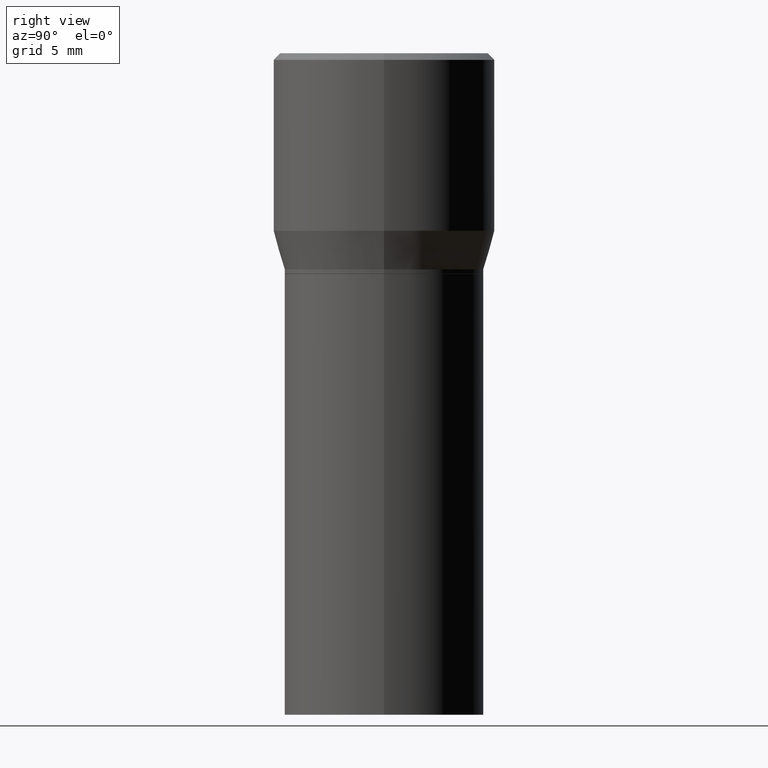
[diagram: clean part render]
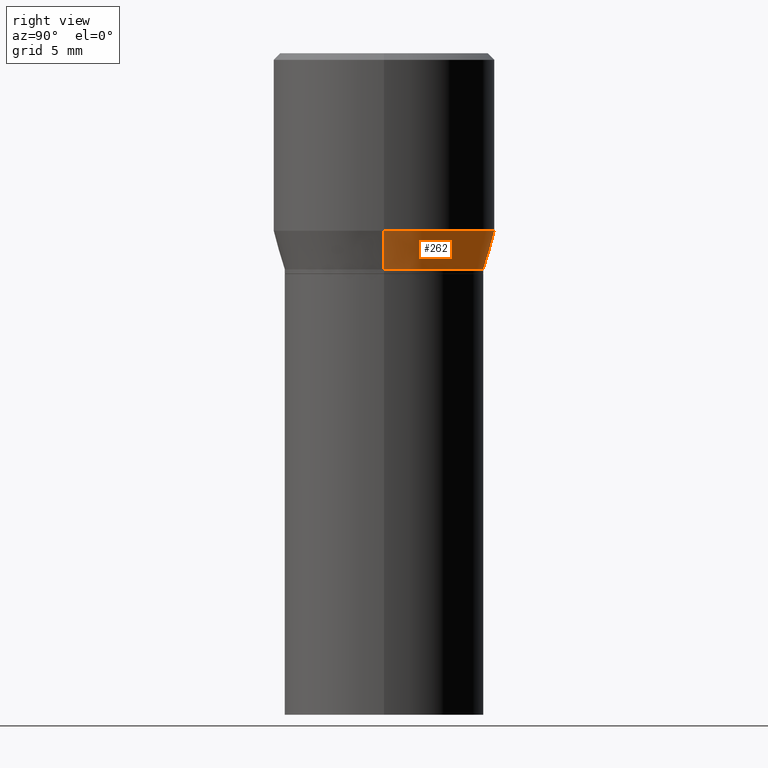
[diagram: same view with one face highlighted and labeled with its STEP entity id]
A machine part, right view. The second image highlights one B-rep face of the part: STEP entity #262.
In plain terms, the highlighted conical surface has half-angle 15 deg.
Its self-contained STEP definition (entity closure, byte-faithful):
#25 = CARTESIAN_POINT ( 'NONE',  ( -0.2265499999999999736, 1.350011205208151600E-16, -0.4900000000000001021 ) ) ;
#41 = CARTESIAN_POINT ( 'NONE',  ( -0.2265499999999999736, -1.010912881686348269E-16, -0.4900000000000001021 ) ) ;
#80 = DIRECTION ( 'NONE',  ( -2.445468806185136597E-29, 3.491481338843145583E-15, 1.000000000000000000 ) ) ;
#132 = CARTESIAN_POINT ( 'NONE',  ( 0.2265499999999999736, -3.292816050662964671E-15, -0.4900000000000001021 ) ) ;
#134 = EDGE_LOOP ( 'NONE', ( #229, #308, #462, #426 ) ) ;
#136 = DIRECTION ( 'NONE',  ( 0.2588190451025214611, 1.565188264969621573E-15, 0.9659258262890682012 ) ) ;
#171 = DIRECTION ( 'NONE',  ( 1.000000000000000000, -6.982962677686265922E-15, 0.000000000000000000 ) ) ;
#175 = DIRECTION ( 'NONE',  ( -2.445468806185136597E-29, 3.491481338843145583E-15, 1.000000000000000000 ) ) ;
#176 = EDGE_CURVE ( 'NONE', #411, #232, #377, .T. ) ;
#193 = DIRECTION ( 'NONE',  ( -2.445468806185136597E-29, 3.491481338843145583E-15, 1.000000000000000000 ) ) ;
#202 = CARTESIAN_POINT ( 'NONE',  ( 1.198279715030717173E-29, -1.710825856033141537E-15, -0.4900000000000001021 ) ) ;
#210 = VERTEX_POINT ( 'NONE', #342 ) ;
#212 = AXIS2_PLACEMENT_3D ( 'NONE', #370, #193, #337 ) ;
#220 = VERTEX_POINT ( 'NONE', #268 ) ;
#229 = ORIENTED_EDGE ( 'NONE', *, *, #448, .T. ) ;
#232 = VERTEX_POINT ( 'NONE', #408 ) ;
#262 = ADVANCED_FACE ( 'NONE', ( #442 ), #451, .T. ) ;
#268 = CARTESIAN_POINT ( 'NONE',  ( 0.2265499999999999736, -3.292816050662964671E-15, -0.4900000000000001021 ) ) ;
#275 = CIRCLE ( 'NONE', #318, 0.2500000000000000000 ) ;
#287 = EDGE_CURVE ( 'NONE', #210, #232, #275, .T. ) ;
#308 = ORIENTED_EDGE ( 'NONE', *, *, #176, .T. ) ;
#312 = LINE ( 'NONE', #132, #376 ) ;
#318 = AXIS2_PLACEMENT_3D ( 'NONE', #413, #80, #456 ) ;
#337 = DIRECTION ( 'NONE',  ( 1.000000000000000000, -6.982962677686265922E-15, 0.000000000000000000 ) ) ;
#341 = AXIS2_PLACEMENT_3D ( 'NONE', #202, #175, #171 ) ;
#342 = CARTESIAN_POINT ( 'NONE',  ( 0.2500000000000000000, -3.151003979611552069E-15, -0.4024834085625100810 ) ) ;
#347 = DIRECTION ( 'NONE',  ( -0.2588190451025214611, 5.211531920934551042E-15, 0.9659258262890682012 ) ) ;
#353 = VECTOR ( 'NONE', #347, 39.37007874015747433 ) ;
#370 = CARTESIAN_POINT ( 'NONE',  ( 1.198279715030717173E-29, -1.710825856033141537E-15, -0.4900000000000001021 ) ) ;
#373 = EDGE_CURVE ( 'NONE', #220, #210, #312, .T. ) ;
#376 = VECTOR ( 'NONE', #136, 39.37007874015747433 ) ;
#377 = LINE ( 'NONE', #41, #353 ) ;
#408 = CARTESIAN_POINT ( 'NONE',  ( -0.2500000000000000000, 3.710935292102651716E-16, -0.4024834085625100810 ) ) ;
#411 = VERTEX_POINT ( 'NONE', #25 ) ;
#413 = CARTESIAN_POINT ( 'NONE',  ( 9.842606206466859638E-30, -1.405263310189985589E-15, -0.4024834085625100810 ) ) ;
#426 = ORIENTED_EDGE ( 'NONE', *, *, #373, .F. ) ;
#438 = CIRCLE ( 'NONE', #341, 0.2265499999999999736 ) ;
#442 = FACE_OUTER_BOUND ( 'NONE', #134, .T. ) ;
#448 = EDGE_CURVE ( 'NONE', #220, #411, #438, .T. ) ;
#451 = CONICAL_SURFACE ( 'NONE', #212, 0.2265499999999999736, 0.2617993877991501295 ) ;
#456 = DIRECTION ( 'NONE',  ( 1.000000000000000000, -6.982962677686265922E-15, 0.000000000000000000 ) ) ;
#462 = ORIENTED_EDGE ( 'NONE', *, *, #287, .F. ) ;